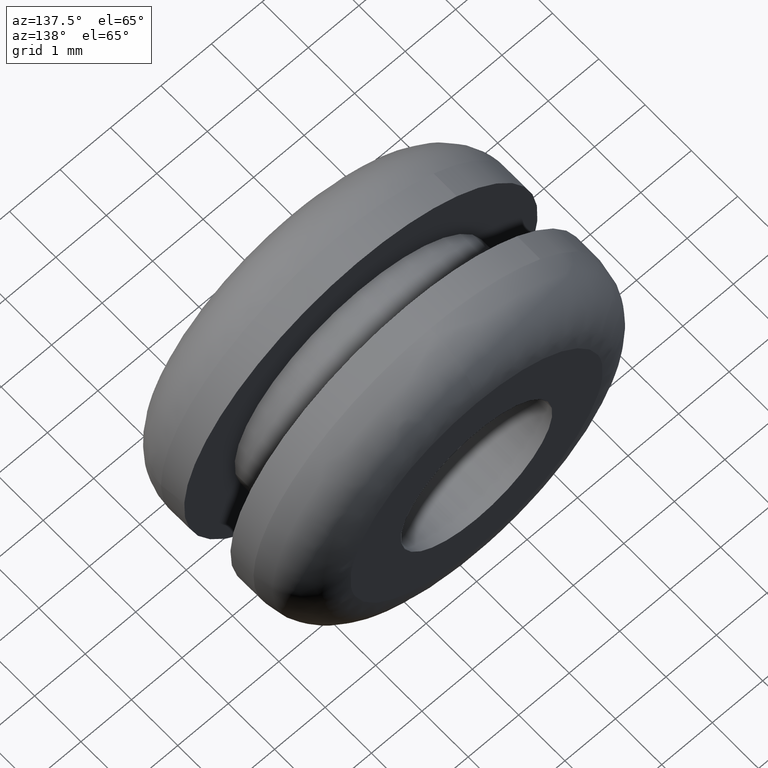
[diagram: clean part render]
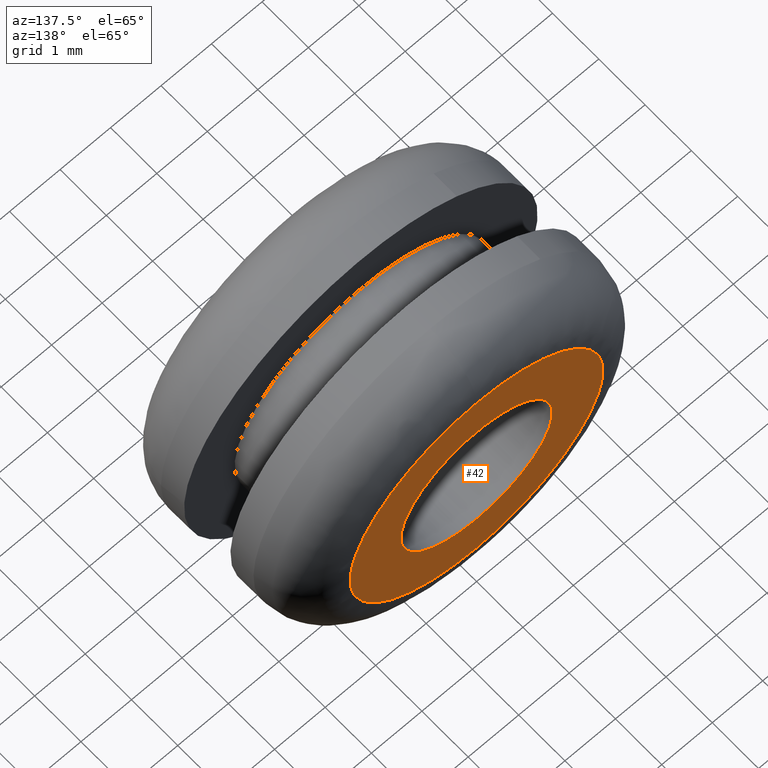
[diagram: same view with one face highlighted and labeled with its STEP entity id]
A machine part, auxiliary view. The second image highlights one B-rep face of the part: STEP entity #42.
In plain terms, the highlighted planar face has unit normal (0, -1, 0).
Its self-contained STEP definition (entity closure, byte-faithful):
#42=ADVANCED_FACE('',(#79,#80),#78,.F.);
#78=PLANE('',#235);
#79=FACE_OUTER_BOUND('',#236,.T.);
#80=FACE_BOUND('',#237,.T.);
#232=CARTESIAN_POINT('',(-5.19615242290E+000,4.00000000000E+000,5.75000000013E+000));
#233=DIRECTION('',(0.00000000000E+000,-1.00000000000E+000,0.00000000000E+000));
#234=DIRECTION('',(0.00000000000E+000,0.00000000000E+000,-1.00000000000E+000));
#235=AXIS2_PLACEMENT_3D('',#232,#233,#234);
#236=EDGE_LOOP('',(#400,#401));
#237=EDGE_LOOP('',(#402,#403,#404));
#400=ORIENTED_EDGE('',*,*,#498,.F.);
#401=ORIENTED_EDGE('',*,*,#499,.F.);
#402=ORIENTED_EDGE('',*,*,#500,.T.);
#403=ORIENTED_EDGE('',*,*,#501,.T.);
#404=ORIENTED_EDGE('',*,*,#502,.T.);
#498=EDGE_CURVE('',#619,#620,#621,.T.);
#499=EDGE_CURVE('',#620,#619,#627,.T.);
#500=EDGE_CURVE('',#633,#634,#635,.T.);
#501=EDGE_CURVE('',#634,#641,#642,.T.);
#502=EDGE_CURVE('',#641,#633,#648,.T.);
#619=VERTEX_POINT('',#926);
#620=VERTEX_POINT('',#927);
#621=CIRCLE('',#931,2.50000000009E+000);
#627=CIRCLE('',#935,2.50000000009E+000);
#633=VERTEX_POINT('',#936);
#634=VERTEX_POINT('',#937);
#635=CIRCLE('',#941,1.50000000000E+000);
#641=VERTEX_POINT('',#942);
#642=CIRCLE('',#946,1.50000000000E+000);
#648=CIRCLE('',#950,1.50000000000E+000);
#926=CARTESIAN_POINT('',(-8.28313713915E-011,4.00000000000E+000,2.50000000000E+000));
#927=CARTESIAN_POINT('',(-9.99200722163E-016,4.00000000000E+000,-2.50000000018E+000));
#928=CARTESIAN_POINT('',(-4.14155376660E-011,4.00000000000E+000,-9.13089603927E-011));
#929=DIRECTION('',(0.00000000000E+000,-1.00000000000E+000,0.00000000000E+000));
#930=DIRECTION('',(1.65662067397E-011,0.00000000000E+000,-1.00000000000E+000));
#931=AXIS2_PLACEMENT_3D('',#928,#929,#930);
#932=CARTESIAN_POINT('',(-4.14155376660E-011,4.00000000000E+000,-9.13089603927E-011));
#933=DIRECTION('',(0.00000000000E+000,-1.00000000000E+000,0.00000000000E+000));
#934=DIRECTION('',(1.65662067397E-011,0.00000000000E+000,-1.00000000000E+000));
#935=AXIS2_PLACEMENT_3D('',#932,#933,#934);
#936=CARTESIAN_POINT('',(2.22044604925E-016,4.00000000000E+000,-1.50000000000E+000));
#937=CARTESIAN_POINT('',(1.48948369674E+000,4.00000000000E+000,-1.77308536578E-001));
#938=CARTESIAN_POINT('',(1.56763491077E-013,4.00000000000E+000,3.44058115331E-013));
#939=DIRECTION('',(-3.04658604083E-015,-1.00000000000E+000,-2.06142015471E-014));
#940=DIRECTION('',(-1.03958508468E-013,2.06142015471E-014,-1.00000000000E+000));
#941=AXIS2_PLACEMENT_3D('',#938,#939,#940);
#942=CARTESIAN_POINT('',(-1.48951439076E+000,4.00000000000E+000,1.77050500459E-001));
#943=CARTESIAN_POINT('',(1.56763491077E-013,4.00000000000E+000,3.44058115331E-013));
#944=DIRECTION('',(-3.04658604083E-015,-1.00000000000E+000,-2.06142015471E-014));
#945=DIRECTION('',(-1.03958508468E-013,2.06142015471E-014,-1.00000000000E+000));
#946=AXIS2_PLACEMENT_3D('',#943,#944,#945);
#947=CARTESIAN_POINT('',(1.56763491077E-013,4.00000000000E+000,3.44058115331E-013));
#948=DIRECTION('',(-3.04658604083E-015,-1.00000000000E+000,-2.06142015471E-014));
#949=DIRECTION('',(-1.03958508468E-013,2.06142015471E-014,-1.00000000000E+000));
#950=AXIS2_PLACEMENT_3D('',#947,#948,#949);